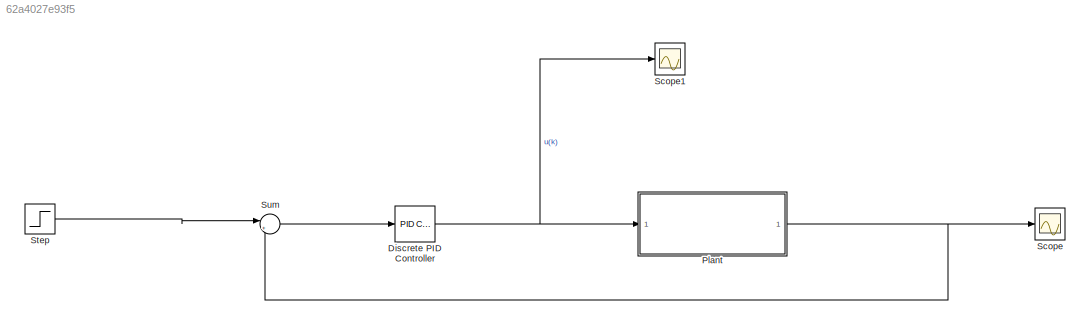
MODEL slx_62a4027e93f5
KIND model
CONFIG AbsTol = auto
CONFIG EnableMultiTasking = off
CONFIG FixedStep = Ts.controller
CONFIG MaxStep = auto
CONFIG MinStep = auto
CONFIG RelTol = 1e-3
CONFIG SampleTimeConstraint = Unconstrained
CONFIG Solver = FixedStepAuto
CONFIG SolverName = FixedStepAuto
CONFIG StartTime = 0.0
CONFIG StopTime = 20
BLOCK [Reference] Discrete PID Controller  REF=simulink/Continuous/PID Controller
  Ports = [1, 1]
  SourceBlock = simulink/Continuous/PID Controller
  SourceType = PID 1dof
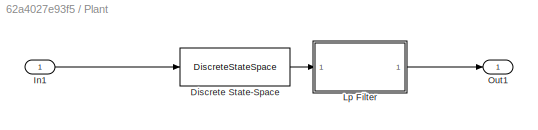
BLOCK [SubSystem] Plant
  Ports = [1, 1]
  RequestExecContextInheritance = off
  Variant = off
BLOCK [DiscreteStateSpace] Plant/Discrete State-Space
  A = sys_d.A
  B = sys_d.B
  C = sys_d.C
  D = 0
  SampleTime = Ts.controller
BLOCK [Inport] Plant/In1
  IconDisplay = Port number
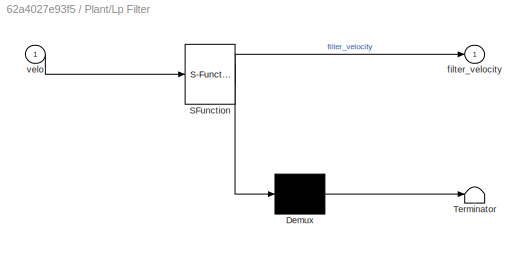
BLOCK [SubSystem] Plant/Lp Filter
  ErrorFcn = Stateflow.Translate.translate
  PermitHierarchicalResolution = ExplicitOnly
  Ports = [1, 1]
  RequestExecContextInheritance = off
  SFBlockType = MATLAB Function
  TreatAsAtomicUnit = on
  Variant = off
BLOCK [Demux] Plant/Lp Filter/ Demux 
  Outputs = 1
  Ports = [1, 1]
BLOCK [S-Function] Plant/Lp Filter/ SFunction 
  EnableBusSupport = on
  FunctionName = sf_sfun
  Parameters = Ts
  PortCounts = [1 2]
  Ports = [1, 2]
  SFcnIsStateOwnerBlock = off
  SFunctionDeploymentMode = off
  Tag = Stateflow S-Function MotorControllerSimulation 10
BLOCK [Terminator] Plant/Lp Filter/ Terminator 
BLOCK [Outport] Plant/Lp Filter/filter_velocity
  IconDisplay = Port number
BLOCK [Inport] Plant/Lp Filter/velo
  IconDisplay = Port number
BLOCK [Outport] Plant/Out1
  IconDisplay = Port number
BLOCK [Scope] Scope
  NumInputPorts = 1
  Ports = [1]
  ScopeSpecificationString = Simulink.scopes.TimeScopeBlockCfg('CurrentConfiguration', extmgr.ConfigurationSet(extmgr.Configuration('Core','General UI',true),extmgr.Configuration('Core','Source UI',true),extmgr.Configuration('Sources','WiredSimulink',true),extmgr.Configuration('Visuals','Time Domain',true,'SerializedDisplays',{struct('MinYLimReal','-36.92639','MaxYLimReal','332.33751','YLabelReal','','MinYLimMag','0.00000','M...<+1432ch>
BLOCK [Scope] Scope1
  NumInputPorts = 1
  Ports = [1]
  ScopeSpecificationString = Simulink.scopes.TimeScopeBlockCfg('CurrentConfiguration', extmgr.ConfigurationSet(extmgr.Configuration('Core','General UI',true),extmgr.Configuration('Core','Source UI',true),extmgr.Configuration('Sources','WiredSimulink',true,'DataLoggingVariableName','ScopeData1'),extmgr.Configuration('Visuals','Time Domain',true,'SerializedDisplays',{struct('MinYLimReal','-3.90427','MaxYLimReal','4.87825','YLab...<+1407ch>
BLOCK [Step] Step
  After = 200
  SampleTime = Ts.controller
  Time = 2
BLOCK [Sum] Sum
  IconShape = round
  InputSameDT = off
  Inputs = |+-
  OutDataTypeStr = Inherit: Inherit via internal rule
  Ports = [2, 1]
  SaturateOnIntegerOverflow = off
NET Discrete PID Controller:1 -> Plant:1, Scope1:1
LINE Plant/Discrete State-Space:1 -> Plant/Lp Filter:1
LINE Plant/In1:1 -> Plant/Discrete State-Space:1
LINE Plant/Lp Filter:1 -> Plant/Out1:1
NET Plant:1 -> Scope:1, Sum:2
LINE Step:1 -> Sum:1
LINE Sum:1 -> Discrete PID Controller:1
note: NET lines group one-source signal fan-out (src -> all destinations, sorted); 1:1 wires keep LINE
CHART Plant/Lp Filter states=1 transitions=1
  STATE_LABEL 'eML_blk_kernel()'
  STATE_LABEL 'SCRIPT:\nfunction filter_velocity  = velocity(velo, Ts)\n\npersistent f_velo;\npersistent L_velo;\n\n\nif isempty(f_velo)\n   f_velo = 0;\n   \n   Tf_velo = 0.4;         % Time Constant % 0.04\n   L_velo  = Ts.controller/(Tf_velo + Ts.controller);  % Filter gain\nend\n\n% LP Filter\nf_velo = (1-L_velo) * f_velo + L_velo * velo;\nfilter_velocity = f_velo;\n'
